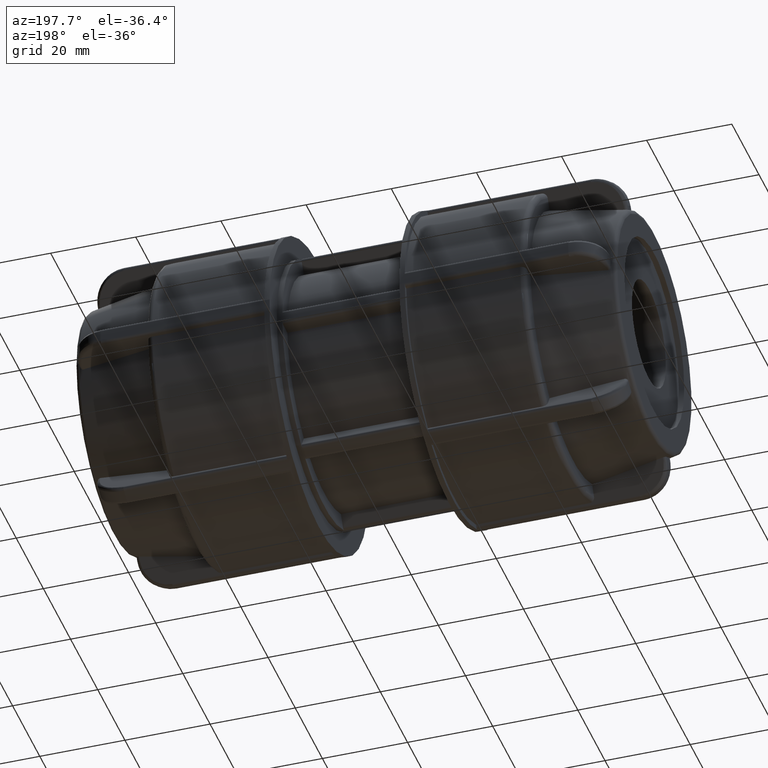
[diagram: clean part render]
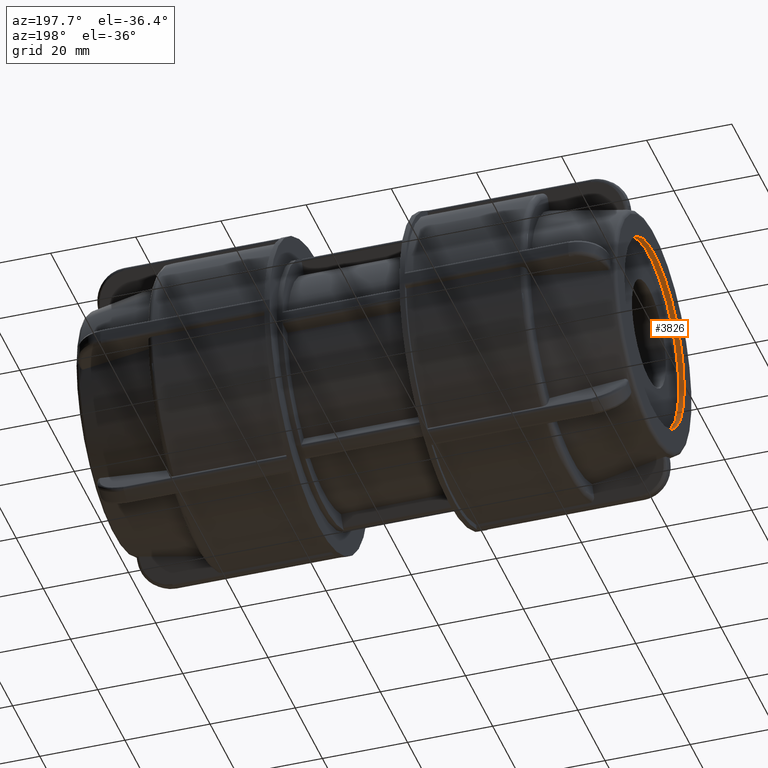
[diagram: same view with one face highlighted and labeled with its STEP entity id]
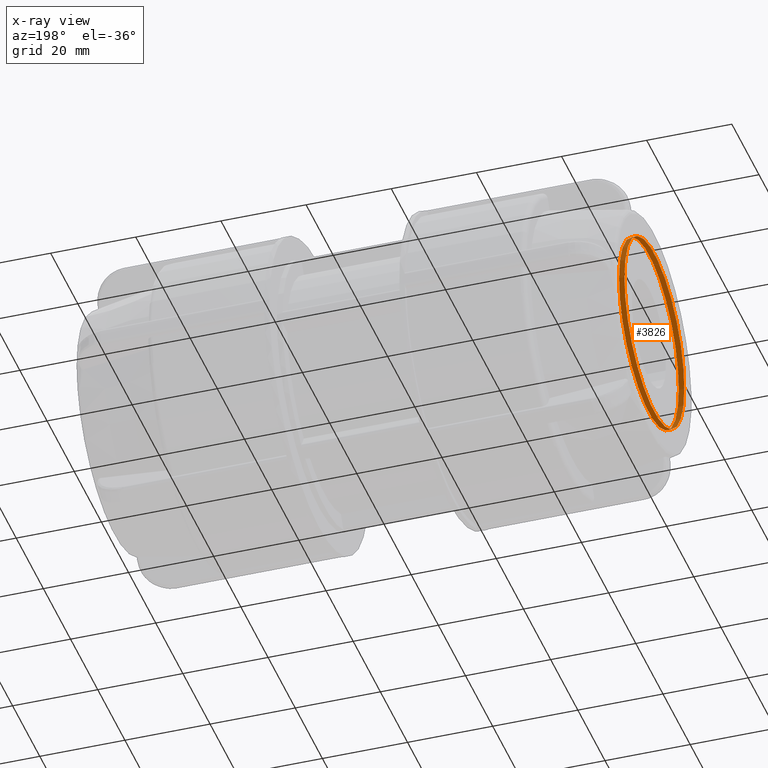
[diagram: x-ray of the same camera — body ghosted, the highlighted face saturated]
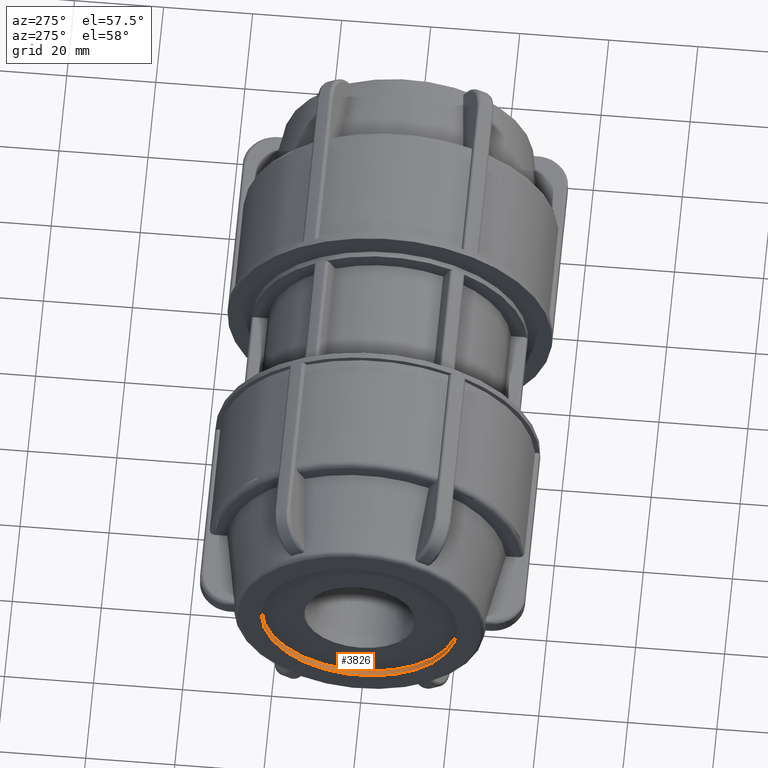
[diagram: same view with one face highlighted and labeled with its STEP entity id]
A machine part, auxiliary view. The second image highlights one B-rep face of the part: STEP entity #3826.
The next image is the same camera in x-ray: the body ghosted, the highlighted face saturated — about 0% of this face is hidden behind the body in this view.
A second angle (auxiliary view) of the same face is appended — the face is thin or edge-on in the first view.
In plain terms, the highlighted cylindrical surface (bore or boss wall) has radius 22 mm, axis along (1, 0, 0).
Its self-contained STEP definition (entity closure, byte-faithful):
#205=FACE_BOUND('',#689,.T.);
#440=FACE_OUTER_BOUND('',#688,.T.);
#688=EDGE_LOOP('',(#3119));
#689=EDGE_LOOP('',(#3120));
#1381=CIRCLE('',#4169,22.);
#1390=CIRCLE('',#4189,22.);
#1696=VERTEX_POINT('',#6763);
#1709=VERTEX_POINT('',#6916);
#2183=EDGE_CURVE('',#1696,#1696,#1381,.T.);
#2206=EDGE_CURVE('',#1709,#1709,#1390,.T.);
#3119=ORIENTED_EDGE('',*,*,#2183,.T.);
#3120=ORIENTED_EDGE('',*,*,#2206,.F.);
#3657=CYLINDRICAL_SURFACE('',#4190,22.);
#3826=ADVANCED_FACE('',(#440,#205),#3657,.F.);
#4169=AXIS2_PLACEMENT_3D('',#6764,#4995,#4996);
#4189=AXIS2_PLACEMENT_3D('',#6917,#5041,#5042);
#4190=AXIS2_PLACEMENT_3D('',#6918,#5043,#5044);
#4995=DIRECTION('center_axis',(1.,3.06161699786838E-16,0.));
#4996=DIRECTION('ref_axis',(0.,0.,-1.));
#5041=DIRECTION('center_axis',(1.,3.06161699786838E-16,0.));
#5042=DIRECTION('ref_axis',(0.,0.,-1.));
#5043=DIRECTION('center_axis',(1.,3.06161699786838E-16,0.));
#5044=DIRECTION('ref_axis',(-2.62563437256631E-16,1.,0.));
#6763=CARTESIAN_POINT('',(-62.23,12.6865019576722,-17.9736659610103));
#6764=CARTESIAN_POINT('Origin',(-62.23,-1.9052442577735E-14,0.));
#6916=CARTESIAN_POINT('',(-63.5,22.,0.));
#6917=CARTESIAN_POINT('Origin',(-63.5,-1.94412679364642E-14,0.));
#6918=CARTESIAN_POINT('Origin',(-62.865,-1.92468552570996E-14,0.));